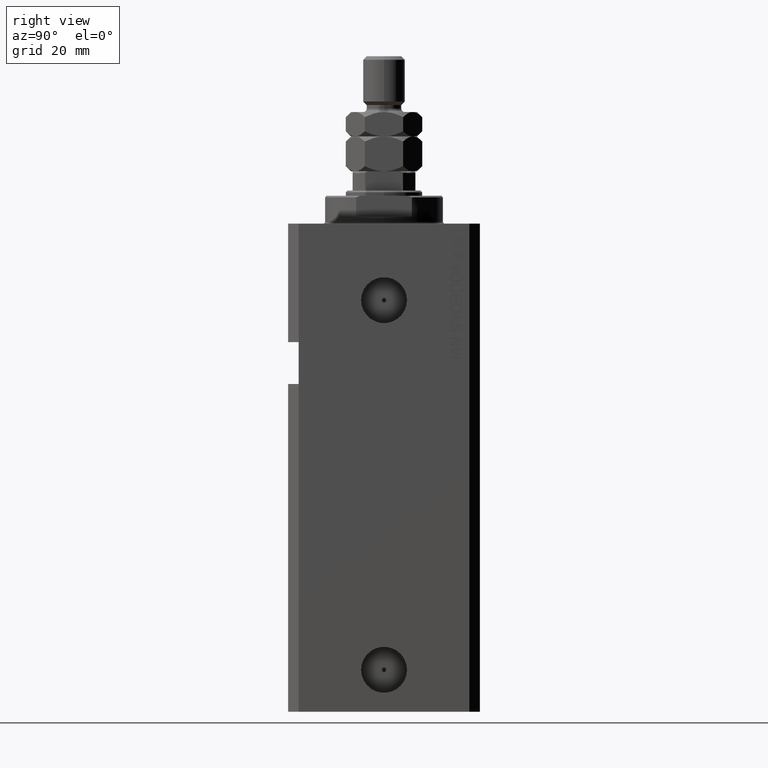
[diagram: clean part render]
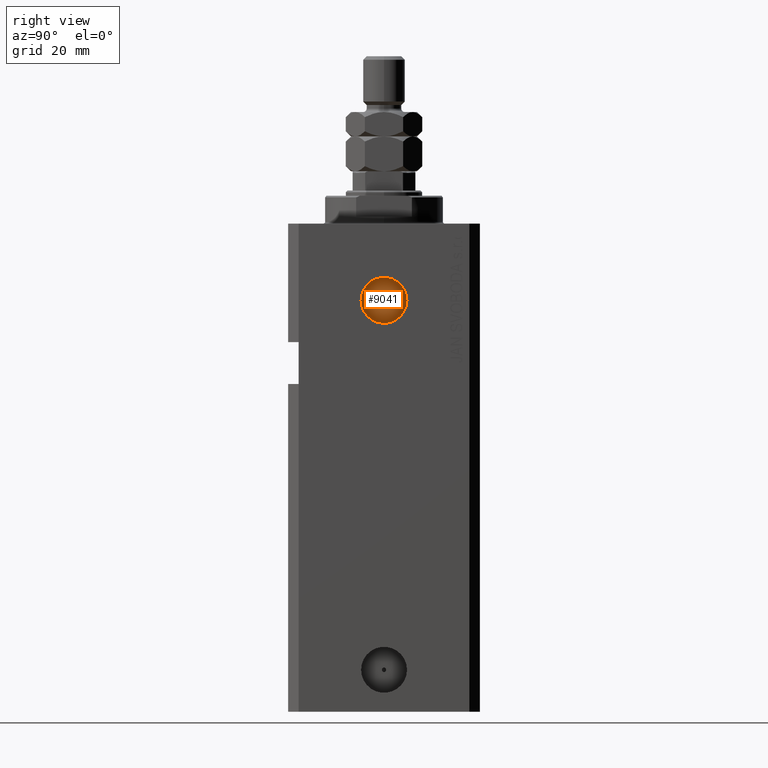
[diagram: same view with one face highlighted and labeled with its STEP entity id]
A machine part, right view. The second image highlights one B-rep face of the part: STEP entity #9041.
In plain terms, the highlighted planar face has unit normal (1, -0, 0).
Its self-contained STEP definition (entity closure, byte-faithful):
#1880 = CIRCLE ( 'NONE', #25782, 6.580000000000002736 ) ;
#4908 = CARTESIAN_POINT ( 'NONE',  ( 24.40000000000025437, -3.255942524141206186E-13, -22.00000000000000000 ) ) ;
#6515 = CARTESIAN_POINT ( 'NONE',  ( 24.40000000000016911, -6.580000000000327809, -22.00000000000000000 ) ) ;
#7146 = EDGE_LOOP ( 'NONE', ( #7633, #41868 ) ) ;
#7633 = ORIENTED_EDGE ( 'NONE', *, *, #45018, .T. ) ;
#8094 = VERTEX_POINT ( 'NONE', #9681 ) ;
#9041 = ADVANCED_FACE ( 'NONE', ( #24374, #31381 ), #25064, .T. ) ;
#9181 = CARTESIAN_POINT ( 'NONE',  ( 24.40000000000025437, -3.255942524141206186E-13, -22.00000000000000000 ) ) ;
#9505 = CARTESIAN_POINT ( 'NONE',  ( 24.40000000000026148, 0.6249999999996732614, -22.00000000000000000 ) ) ;
#9681 = CARTESIAN_POINT ( 'NONE',  ( 24.40000000000034319, 6.579999999999677662, -22.00000000000000000 ) ) ;
#10348 = CARTESIAN_POINT ( 'NONE',  ( 24.40000000000025437, -3.255942524141206186E-13, -22.00000000000000000 ) ) ;
#11983 = VERTEX_POINT ( 'NONE', #28676 ) ;
#12890 = DIRECTION ( 'NONE',  ( 1.318178933113074700E-14, 1.000000000000000000, 0.000000000000000000 ) ) ;
#14021 = AXIS2_PLACEMENT_3D ( 'NONE', #4908, #15433, #29682 ) ;
#14124 = DIRECTION ( 'NONE',  ( 1.110223024625158749E-14, 1.000000000000000000, 0.000000000000000000 ) ) ;
#14712 = VERTEX_POINT ( 'NONE', #6515 ) ;
#14930 = VERTEX_POINT ( 'NONE', #9505 ) ;
#15433 = DIRECTION ( 'NONE',  ( 1.000000000000000000, -1.334402673828349134E-14, 0.000000000000000000 ) ) ;
#20008 = ORIENTED_EDGE ( 'NONE', *, *, #38049, .F. ) ;
#21327 = DIRECTION ( 'NONE',  ( 1.334402673828349134E-14, 1.000000000000000000, 0.000000000000000000 ) ) ;
#21597 = DIRECTION ( 'NONE',  ( 1.000000000000000000, -1.334402673828349134E-14, 0.000000000000000000 ) ) ;
#23435 = DIRECTION ( 'NONE',  ( 1.000000000000000000, -1.334402673828349134E-14, 0.000000000000000000 ) ) ;
#24374 = FACE_BOUND ( 'NONE', #34861, .T. ) ;
#24599 = DIRECTION ( 'NONE',  ( 1.000000000000000000, -1.334402673828349134E-14, 0.000000000000000000 ) ) ;
#25064 = PLANE ( 'NONE',  #31628 ) ;
#25782 = AXIS2_PLACEMENT_3D ( 'NONE', #9181, #23435, #34182 ) ;
#28676 = CARTESIAN_POINT ( 'NONE',  ( 24.40000000000024727, -0.6250000000003244072, -22.00000000000000000 ) ) ;
#29682 = DIRECTION ( 'NONE',  ( 1.110223024625158749E-14, 1.000000000000000000, 0.000000000000000000 ) ) ;
#30426 = AXIS2_PLACEMENT_3D ( 'NONE', #40475, #30430, #12890 ) ;
#30430 = DIRECTION ( 'NONE',  ( 1.000000000000000000, -1.334402673828349134E-14, 0.000000000000000000 ) ) ;
#31381 = FACE_OUTER_BOUND ( 'NONE', #7146, .T. ) ;
#31628 = AXIS2_PLACEMENT_3D ( 'NONE', #10348, #24599, #21327 ) ;
#31652 = EDGE_CURVE ( 'NONE', #14712, #8094, #1880, .T. ) ;
#33407 = CIRCLE ( 'NONE', #36413, 0.6249999999999987788 ) ;
#34182 = DIRECTION ( 'NONE',  ( 1.318178933113074700E-14, 1.000000000000000000, 0.000000000000000000 ) ) ;
#34861 = EDGE_LOOP ( 'NONE', ( #20008, #44113 ) ) ;
#36413 = AXIS2_PLACEMENT_3D ( 'NONE', #46127, #21597, #14124 ) ;
#37150 = CIRCLE ( 'NONE', #30426, 6.580000000000002736 ) ;
#38049 = EDGE_CURVE ( 'NONE', #14930, #11983, #33407, .T. ) ;
#40475 = CARTESIAN_POINT ( 'NONE',  ( 24.40000000000025437, -3.255942524141206186E-13, -22.00000000000000000 ) ) ;
#41868 = ORIENTED_EDGE ( 'NONE', *, *, #31652, .T. ) ;
#43128 = CIRCLE ( 'NONE', #14021, 0.6249999999999987788 ) ;
#44113 = ORIENTED_EDGE ( 'NONE', *, *, #45368, .F. ) ;
#45018 = EDGE_CURVE ( 'NONE', #8094, #14712, #37150, .T. ) ;
#45368 = EDGE_CURVE ( 'NONE', #11983, #14930, #43128, .T. ) ;
#46127 = CARTESIAN_POINT ( 'NONE',  ( 24.40000000000025437, -3.255942524141206186E-13, -22.00000000000000000 ) ) ;